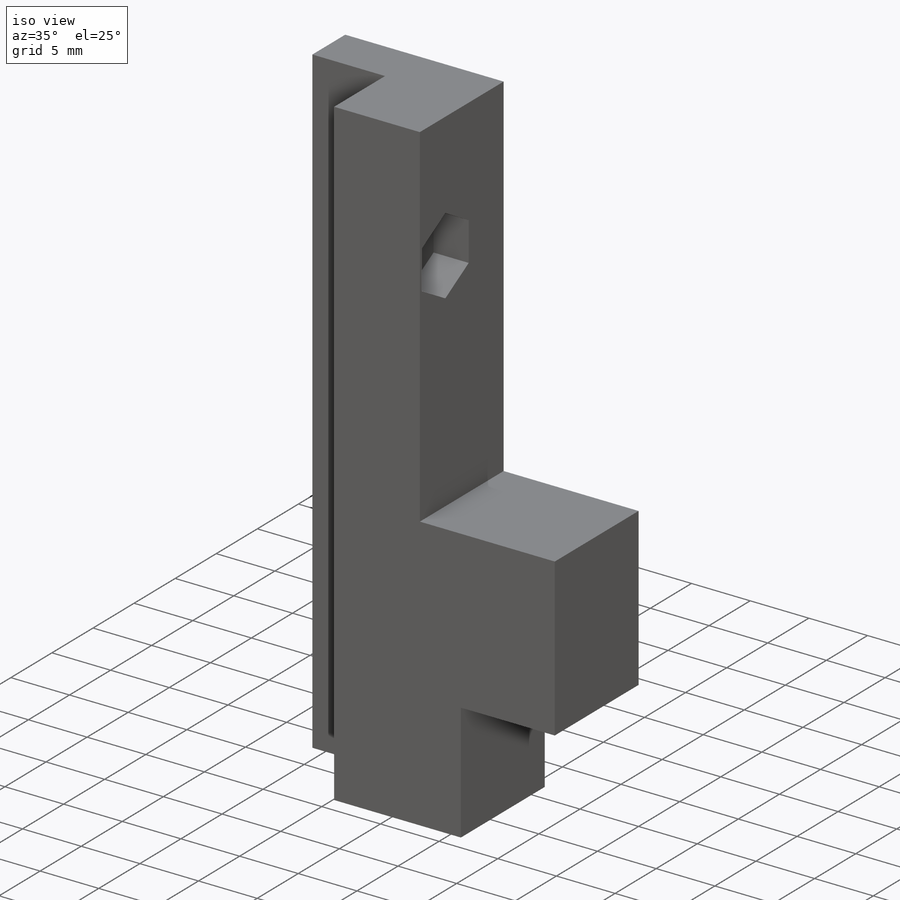
[diagram: iso view]
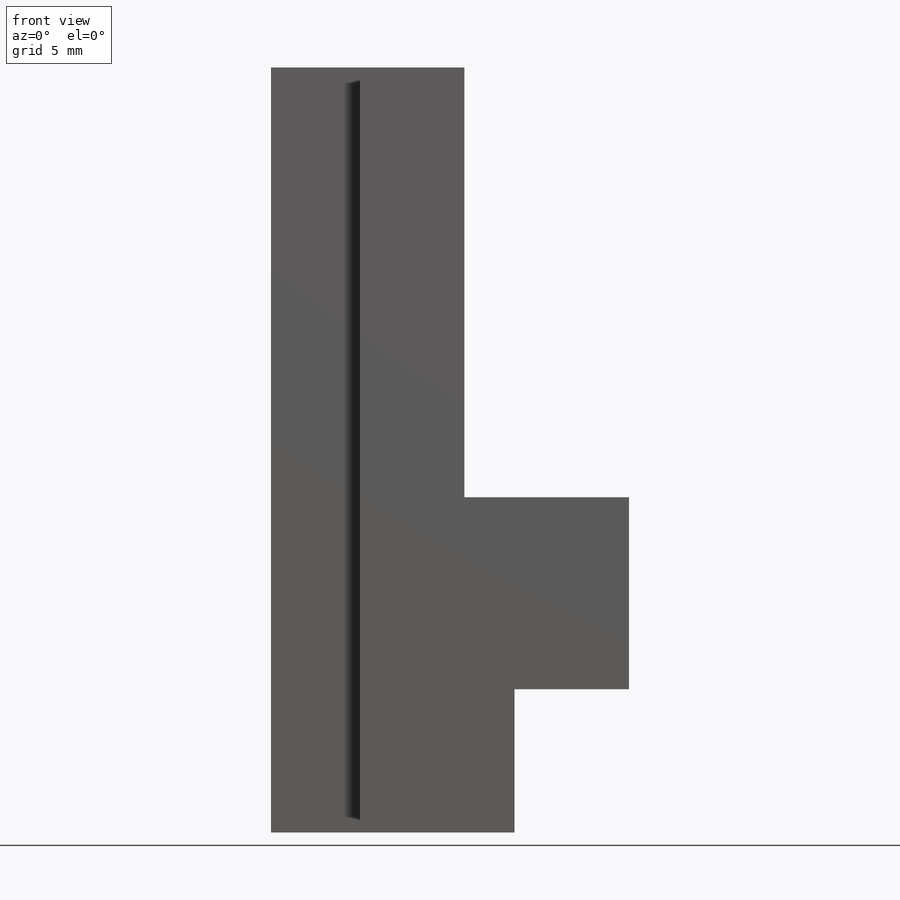
[diagram: front view]
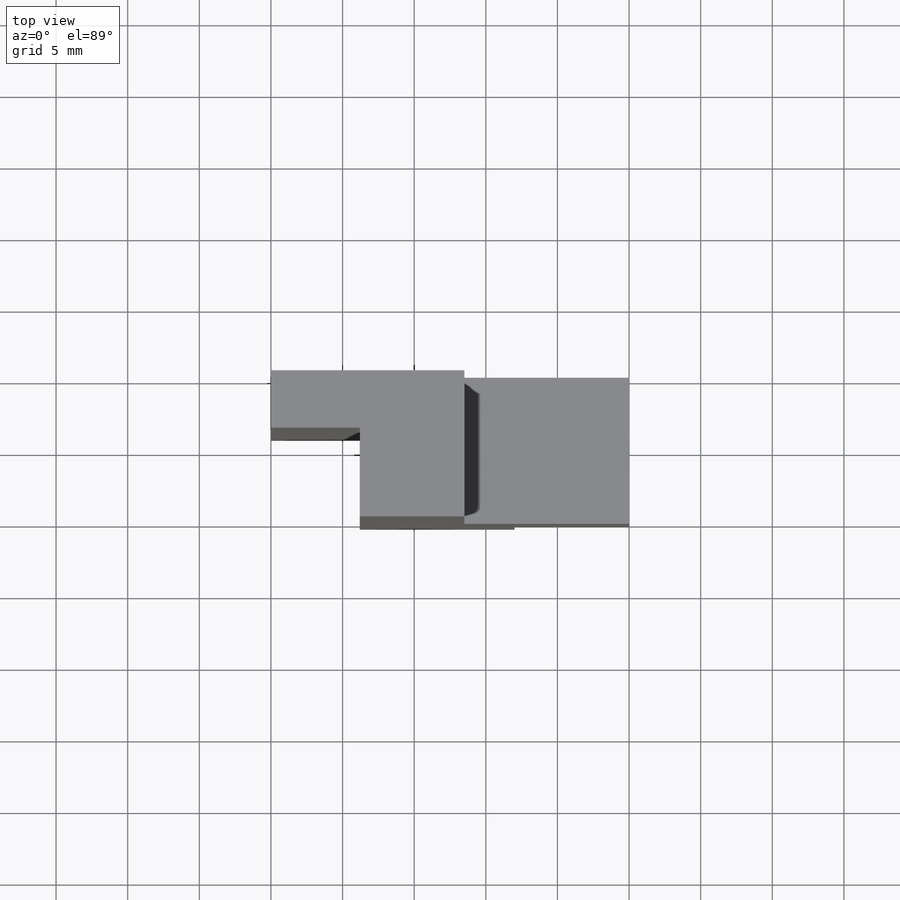
[diagram: top view]
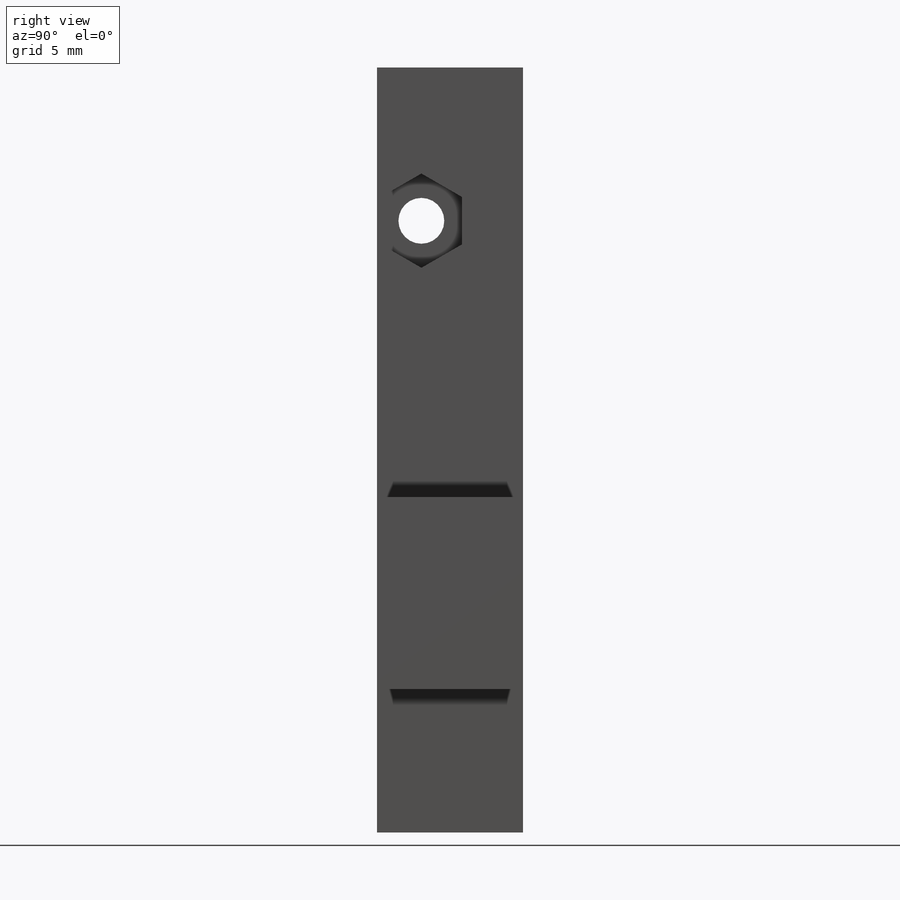
[diagram: right view]
SOLIDWORKS PART (.sldprt)
format: sldprt  version: not decoded by parser v0  size: 194,048 bytes
history: native  units: mm
features: sketch x6, extrude x4, plane x3, cut_extrude x2, material x1 (+13 scaffold rows collapsed)
feature tree (29):
  scaffold x13  (default folders/planes/origin — collapsed)
  material  "Material <sin especificar>"
  plane  "Alzado"
  plane  "Planta"
  plane  "Vista lateral"
  sketch  "Croquis1"  dims[D1=25.0mm D2=35.0mm D3=13.5mm D4=5.0mm]
  extrude  "Saliente-Extruir1"  Depth=4mm
  sketch  "Croquis2"  dims[D2=6.2mm D1=0.0mm]
  extrude  "Saliente-Extruir2"  Depth=6.2mm
  sketch  "Croquis3"  dims[D2=3.2mm D1=10.7mm]
  cut_extrude  "Cortar-Extruir1"  [1 undecoded]
  sketch  "Croquis4"  dims[D1=5.7mm]
  cut_extrude  "Cortar-Extruir2"  Depth=3mm
  sketch  "Croquis5"  dims[D1=0.0mm]
  extrude  "Saliente-Extruir3"  Depth=8.4mm
  sketch  "Croquis6"  dims[D2=17.0mm D1=0.0mm]
  extrude  "Saliente-Extruir4"  Depth=10mm
decode coverage: 11 of 12 modeling features carry decoded parameters
note: 1 parameter value undecoded
note: suppression state not decoded; provenance and decode notes live in map.json
